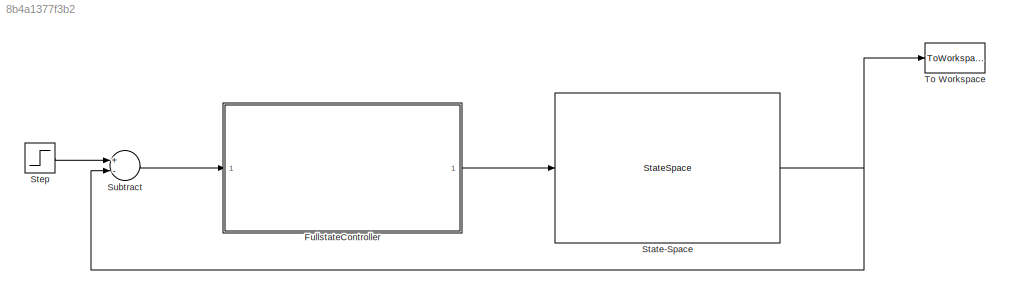
MODEL slx_8b4a1377f3b2
KIND model
CONFIG AbsTol = auto
CONFIG FixedStep = auto
CONFIG MaxStep = auto
CONFIG MinStep = auto
CONFIG RelTol = 1e-3
CONFIG SampleTimeConstraint = Unconstrained
CONFIG Solver = ode45
CONFIG SolverMode = Auto
CONFIG SolverName = ode45
CONFIG StartTime = 0.0
CONFIG StopTime = 10.0
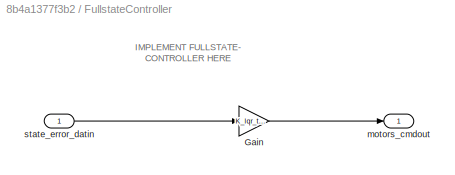
BLOCK [SubSystem] FullstateController
  Ports = [1, 1]
  RequestExecContextInheritance = off
BLOCK [Gain] FullstateController/Gain
  Gain = K_lqr_toMotorcmd
  Multiplication = Matrix(K*u)
  OutDataTypeStr = Inherit: Inherit via internal rule
  ParamDataTypeStr = Inherit: Inherit via internal rule
  SaturateOnIntegerOverflow = off
BLOCK [Outport] FullstateController/motors_cmdout
  IconDisplay = Port number
BLOCK [Inport] FullstateController/state_error_datin
  IconDisplay = Port number
BLOCK [StateSpace] State-Space
  A = A
  B = B
  C = C
  D = D
  Ports = [1, 1]
  X0 = [0;0;1.5;0;0;0;0;0;0;0;0;0]
BLOCK [Step] Step
  After = [0;0;-1.5;0;0;0;0;0;0;0;0;0]
  SampleTime = 0
BLOCK [Sum] Subtract
  InputSameDT = off
  Inputs = +-
  OutDataTypeStr = Inherit: Inherit via internal rule
  Ports = [2, 1]
  SaturateOnIntegerOverflow = off
BLOCK [ToWorkspace] To Workspace
  FixptAsFi = on
  MaxDataPoints = inf
  Ports = [1]
  SampleTime = -1
  Save2DSignal = 3-D array (concatenate along third dimension)
  SaveFormat = Timeseries
  VariableName = simout
ANNOTATION FullstateController: IMPLEMENT FULLSTATE- CONTROLLER HERE
LINE FullstateController/Gain:1 -> FullstateController/motors_cmdout:1
LINE FullstateController/state_error_datin:1 -> FullstateController/Gain:1
LINE FullstateController:1 -> State-Space:1
NET State-Space:1 -> Subtract:2, To Workspace:1
LINE Step:1 -> Subtract:1
LINE Subtract:1 -> FullstateController:1
note: NET lines group one-source signal fan-out (src -> all destinations, sorted); 1:1 wires keep LINE
